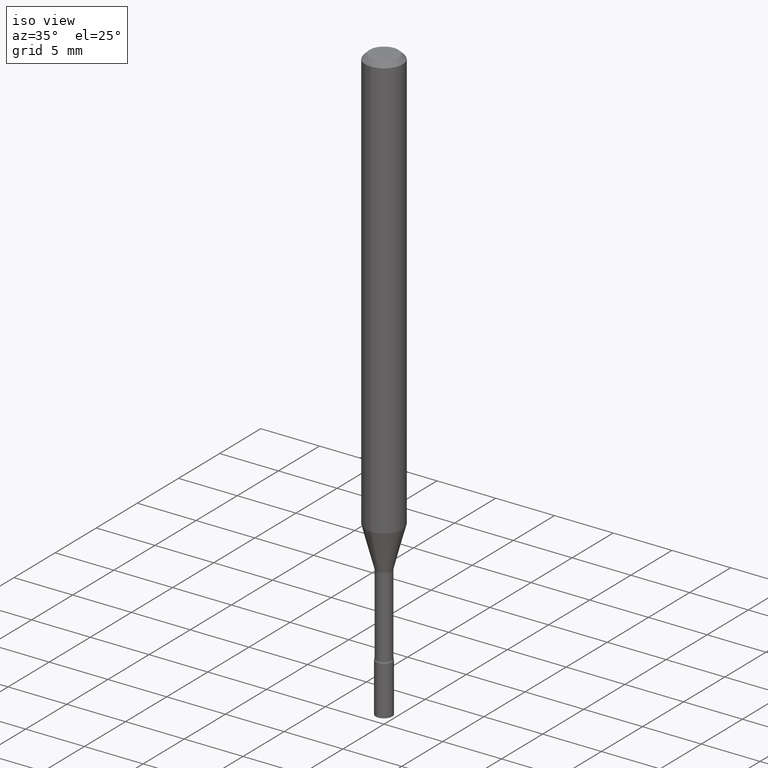
[diagram: clean part render]
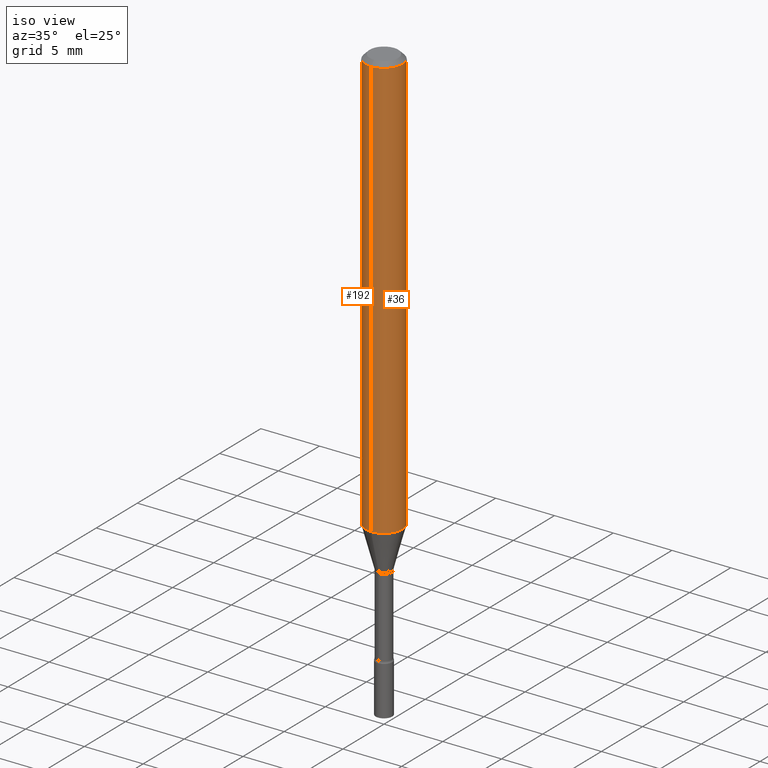
[diagram: same view with one multi-face feature highlighted, each face labeled with its STEP entity id]
A machine part, iso view. The highlighted faces form ONE feature: a constant-radius fillet chain: 2 tangent blend faces with common blend radius 1.5875 mm. The faces share edges in the B-rep.
Their STEP definitions:
[1] entity #36 (Cylinder):
#5 = AXIS2_PLACEMENT_3D ( 'NONE', #472, #191, #270 ) ;
#14 = DIRECTION ( 'NONE',  ( -2.445437507038217742E-29, 3.491526161002970435E-15, 1.000000000000000000 ) ) ;
#30 = CARTESIAN_POINT ( 'NONE',  ( 4.440892098500625669E-16, 0.06250000000000000000, -2.182203850626856522E-16 ) ) ;
#36 = ADVANCED_FACE ( 'NONE', ( #499 ), #422, .T. ) ;
#65 = CARTESIAN_POINT ( 'NONE',  ( 0.000000000000000000, 0.000000000000000000, 0.000000000000000000 ) ) ;
#71 = VERTEX_POINT ( 'NONE', #179 ) ;
#73 = LINE ( 'NONE', #30, #265 ) ;
#111 = ORIENTED_EDGE ( 'NONE', *, *, #114, .F. ) ;
#114 = EDGE_CURVE ( 'NONE', #242, #374, #512, .T. ) ;
#139 = CIRCLE ( 'NONE', #400, 0.06250000000000000000 ) ;
#150 = CIRCLE ( 'NONE', #5, 0.06250000000000000000 ) ;
#156 = CARTESIAN_POINT ( 'NONE',  ( -4.364351673553912750E-16, -0.06250000000000005551, -0.01499999999999981209 ) ) ;
#178 = CARTESIAN_POINT ( 'NONE',  ( 3.668156260557333655E-31, -5.237289241504466426E-17, -0.01500000000000003067 ) ) ;
#179 = CARTESIAN_POINT ( 'NONE',  ( 4.440892098500976219E-16, 0.06249999999999995143, -0.01500000000000024751 ) ) ;
#191 = DIRECTION ( 'NONE',  ( -2.445437507038217742E-29, 3.491526161002970435E-15, 1.000000000000000000 ) ) ;
#193 = AXIS2_PLACEMENT_3D ( 'NONE', #65, #269, #306 ) ;
#219 = CARTESIAN_POINT ( 'NONE',  ( -4.364351673553569595E-16, -0.06250000000000498213, -1.423220337902600496 ) ) ;
#233 = CARTESIAN_POINT ( 'NONE',  ( 4.440892098500972274E-16, 0.06249999999999501094, -1.423220337902601162 ) ) ;
#234 = CARTESIAN_POINT ( 'NONE',  ( -4.364351673553916201E-16, -0.06250000000000000000, 2.182203850626856522E-16 ) ) ;
#240 = VERTEX_POINT ( 'NONE', #233 ) ;
#242 = VERTEX_POINT ( 'NONE', #219 ) ;
#265 = VECTOR ( 'NONE', #419, 39.37007874015748143 ) ;
#269 = DIRECTION ( 'NONE',  ( -2.445437507038217742E-29, 3.491526161002970435E-15, 1.000000000000000000 ) ) ;
#270 = DIRECTION ( 'NONE',  ( -6.982962677686265922E-15, -1.000000000000000000, 4.370956789862821150E-15 ) ) ;
#282 = ORIENTED_EDGE ( 'NONE', *, *, #433, .T. ) ;
#289 = VECTOR ( 'NONE', #386, 39.37007874015748143 ) ;
#296 = DIRECTION ( 'NONE',  ( -6.982962677686265922E-15, -1.000000000000000000, 3.483106191921935554E-15 ) ) ;
#306 = DIRECTION ( 'NONE',  ( -6.982962677686265922E-15, -1.000000000000000000, 3.491526161002970435E-15 ) ) ;
#326 = ORIENTED_EDGE ( 'NONE', *, *, #427, .T. ) ;
#327 = EDGE_CURVE ( 'NONE', #374, #71, #139, .T. ) ;
#374 = VERTEX_POINT ( 'NONE', #156 ) ;
#386 = DIRECTION ( 'NONE',  ( -2.445437507038217462E-29, 3.491526161002970435E-15, 1.000000000000000000 ) ) ;
#398 = EDGE_LOOP ( 'NONE', ( #326, #282, #430, #111 ) ) ;
#400 = AXIS2_PLACEMENT_3D ( 'NONE', #178, #14, #296 ) ;
#419 = DIRECTION ( 'NONE',  ( -2.445437507038217462E-29, 3.491526161002970435E-15, 1.000000000000000000 ) ) ;
#422 = CYLINDRICAL_SURFACE ( 'NONE', #193, 0.06250000000000000000 ) ;
#427 = EDGE_CURVE ( 'NONE', #242, #240, #150, .T. ) ;
#430 = ORIENTED_EDGE ( 'NONE', *, *, #327, .F. ) ;
#433 = EDGE_CURVE ( 'NONE', #240, #71, #73, .T. ) ;
#472 = CARTESIAN_POINT ( 'NONE',  ( 3.480396395086626474E-29, -4.969211042658417815E-15, -1.423220337902600718 ) ) ;
#499 = FACE_OUTER_BOUND ( 'NONE', #398, .T. ) ;
#512 = LINE ( 'NONE', #234, #289 ) ;
[2] entity #192 (Cylinder):
#26 = CARTESIAN_POINT ( 'NONE',  ( 3.480396395086626474E-29, -4.969211042658417815E-15, -1.423220337902600718 ) ) ;
#28 = DIRECTION ( 'NONE',  ( -6.982962677686265922E-15, -1.000000000000000000, 4.370956789862821150E-15 ) ) ;
#30 = CARTESIAN_POINT ( 'NONE',  ( 4.440892098500625669E-16, 0.06250000000000000000, -2.182203850626856522E-16 ) ) ;
#39 = ORIENTED_EDGE ( 'NONE', *, *, #433, .F. ) ;
#46 = CIRCLE ( 'NONE', #421, 0.06250000000000000000 ) ;
#53 = DIRECTION ( 'NONE',  ( -2.445437507038217742E-29, 3.491526161002970435E-15, 1.000000000000000000 ) ) ;
#67 = ORIENTED_EDGE ( 'NONE', *, *, #114, .T. ) ;
#71 = VERTEX_POINT ( 'NONE', #179 ) ;
#73 = LINE ( 'NONE', #30, #265 ) ;
#100 = CIRCLE ( 'NONE', #369, 0.06250000000000000000 ) ;
#114 = EDGE_CURVE ( 'NONE', #242, #374, #512, .T. ) ;
#137 = CARTESIAN_POINT ( 'NONE',  ( 0.000000000000000000, 0.000000000000000000, 0.000000000000000000 ) ) ;
#141 = DIRECTION ( 'NONE',  ( -2.445437507038217742E-29, 3.491526161002970435E-15, 1.000000000000000000 ) ) ;
#153 = CARTESIAN_POINT ( 'NONE',  ( 3.668156260557333655E-31, -5.237289241504466426E-17, -0.01500000000000003067 ) ) ;
#156 = CARTESIAN_POINT ( 'NONE',  ( -4.364351673553912750E-16, -0.06250000000000005551, -0.01499999999999981209 ) ) ;
#179 = CARTESIAN_POINT ( 'NONE',  ( 4.440892098500976219E-16, 0.06249999999999995143, -0.01500000000000024751 ) ) ;
#192 = ADVANCED_FACE ( 'NONE', ( #313 ), #505, .T. ) ;
#219 = CARTESIAN_POINT ( 'NONE',  ( -4.364351673553569595E-16, -0.06250000000000498213, -1.423220337902600496 ) ) ;
#224 = EDGE_CURVE ( 'NONE', #240, #242, #46, .T. ) ;
#233 = CARTESIAN_POINT ( 'NONE',  ( 4.440892098500972274E-16, 0.06249999999999501094, -1.423220337902601162 ) ) ;
#234 = CARTESIAN_POINT ( 'NONE',  ( -4.364351673553916201E-16, -0.06250000000000000000, 2.182203850626856522E-16 ) ) ;
#240 = VERTEX_POINT ( 'NONE', #233 ) ;
#242 = VERTEX_POINT ( 'NONE', #219 ) ;
#265 = VECTOR ( 'NONE', #419, 39.37007874015748143 ) ;
#283 = ORIENTED_EDGE ( 'NONE', *, *, #224, .T. ) ;
#289 = VECTOR ( 'NONE', #386, 39.37007874015748143 ) ;
#312 = ORIENTED_EDGE ( 'NONE', *, *, #373, .F. ) ;
#313 = FACE_OUTER_BOUND ( 'NONE', #363, .T. ) ;
#358 = DIRECTION ( 'NONE',  ( -6.982962677686265922E-15, -1.000000000000000000, 3.483106191921935554E-15 ) ) ;
#363 = EDGE_LOOP ( 'NONE', ( #39, #283, #67, #312 ) ) ;
#369 = AXIS2_PLACEMENT_3D ( 'NONE', #153, #461, #358 ) ;
#373 = EDGE_CURVE ( 'NONE', #71, #374, #100, .T. ) ;
#374 = VERTEX_POINT ( 'NONE', #156 ) ;
#383 = AXIS2_PLACEMENT_3D ( 'NONE', #137, #141, #420 ) ;
#386 = DIRECTION ( 'NONE',  ( -2.445437507038217462E-29, 3.491526161002970435E-15, 1.000000000000000000 ) ) ;
#419 = DIRECTION ( 'NONE',  ( -2.445437507038217462E-29, 3.491526161002970435E-15, 1.000000000000000000 ) ) ;
#420 = DIRECTION ( 'NONE',  ( -6.982962677686265922E-15, -1.000000000000000000, 3.491526161002970435E-15 ) ) ;
#421 = AXIS2_PLACEMENT_3D ( 'NONE', #26, #53, #28 ) ;
#433 = EDGE_CURVE ( 'NONE', #240, #71, #73, .T. ) ;
#461 = DIRECTION ( 'NONE',  ( -2.445437507038217742E-29, 3.491526161002970435E-15, 1.000000000000000000 ) ) ;
#505 = CYLINDRICAL_SURFACE ( 'NONE', #383, 0.06250000000000000000 ) ;
#512 = LINE ( 'NONE', #234, #289 ) ;